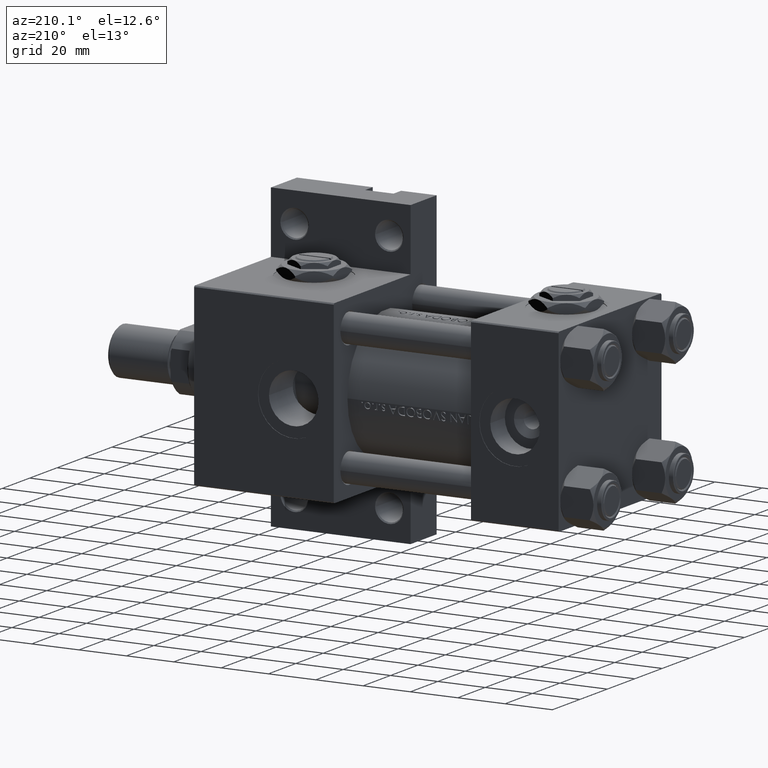
[diagram: clean part render]
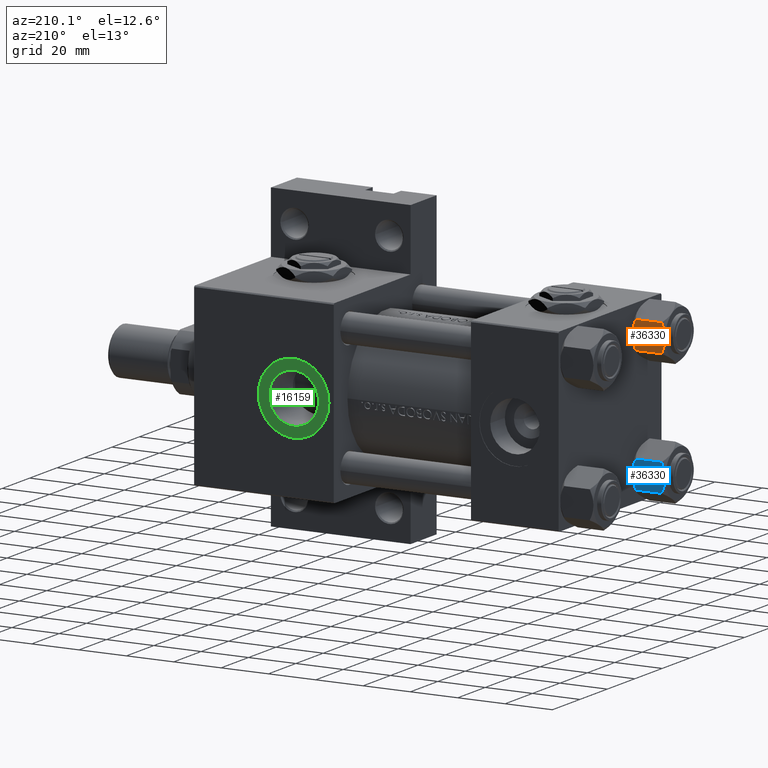
[diagram: same view with three faces highlighted in distinct colors, each labeled with its STEP entity id]
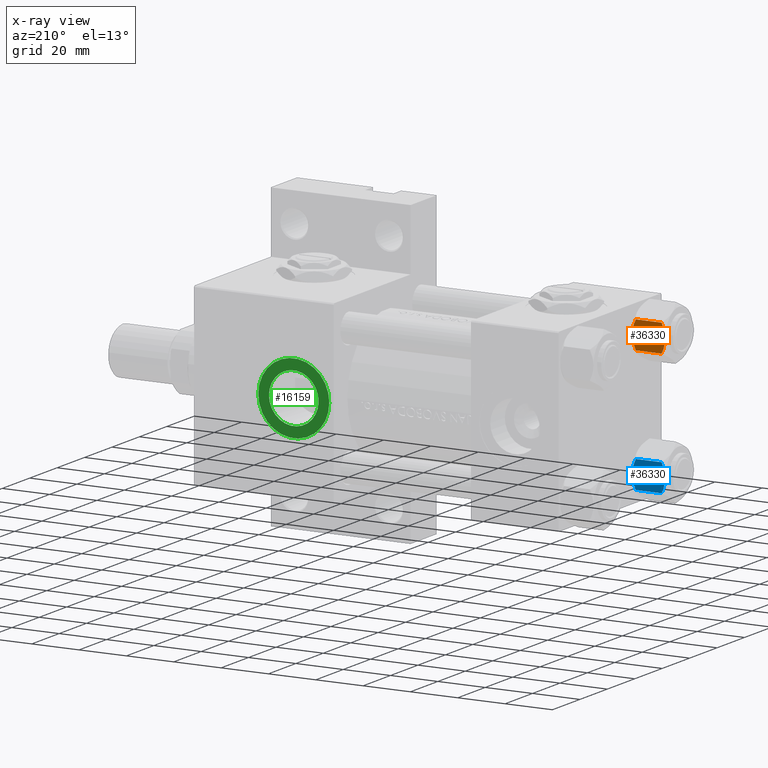
[diagram: x-ray of the same camera — body ghosted, the three highlighted faces saturated]
A machine part, auxiliary view with three faces highlighted in distinct colors.
The next image is the same camera in x-ray (body ghosted, the three faces saturated) — at least one of them is partly hidden behind the body in this view.
Their STEP definitions:

[orange] entity #36330 — the highlighted planar face has unit normal (0, -1, 0).
#371 = VERTEX_POINT ( 'NONE', #44726 ) ;
#1357 = CARTESIAN_POINT ( 'NONE',  ( -5.810000000000000497, -10.06321519197517844, -12.44321519197518633 ) ) ;
#2490 = B_SPLINE_CURVE_WITH_KNOTS ( 'NONE', 3,
 ( #38866, #23390, #4105, #26202, #6900, #22391, #43915, #4357 ),
 .UNSPECIFIED., .F., .F.,
 ( 4, 2, 2, 4 ),
 ( 0.01467889604968879332, 0.01619420351931635110, 0.01770951098894390716, 0.02074012592819902273 ),
 .UNSPECIFIED. ) ;
#2619 = CARTESIAN_POINT ( 'NONE',  ( 3.960942496020604331, -10.06321519197518022, -0.7115728323610380768 ) ) ;
#2931 = B_SPLINE_CURVE_WITH_KNOTS ( 'NONE', 3,
 ( #11230, #14797, #26716, #26466, #41931, #30013, #2619, #7419, #10488 ),
 .UNSPECIFIED., .F., .F.,
 ( 4, 2, 1, 2, 4 ),
 ( 0.02074012592819902273, 0.02149589804477578664, 0.02225167016135255402, 0.02376321439450608530, 0.02678630286081314441 ),
 .UNSPECIFIED. ) ;
#3205 = ORIENTED_EDGE ( 'NONE', *, *, #40835, .F. ) ;
#4105 = CARTESIAN_POINT ( 'NONE',  ( -4.900668367960793859, -10.06321519197517667, -1.121556683709771463 ) ) ;
#4357 = CARTESIAN_POINT ( 'NONE',  ( 1.502314598737159623E-15, -10.06321519197518199, 0.000000000000000000 ) ) ;
#5167 = CARTESIAN_POINT ( 'NONE',  ( -1.772424303831127590, -10.06321519197517667, -13.86611290782776784 ) ) ;
#5384 = CARTESIAN_POINT ( 'NONE',  ( -5.810000000000000497, -10.06321519197517844, -14.00000000000000000 ) ) ;
#6900 = CARTESIAN_POINT ( 'NONE',  ( -3.474497094393254937, -10.06321519197517844, -0.5726960901042742469 ) ) ;
#7100 = VECTOR ( 'NONE', #13245, 1000.000000000000000 ) ;
#7419 = CARTESIAN_POINT ( 'NONE',  ( 4.908816193182381937, -10.06321519197517844, -1.106192904616003059 ) ) ;
#8901 = VERTEX_POINT ( 'NONE', #16486 ) ;
#10488 = CARTESIAN_POINT ( 'NONE',  ( 5.810000000000000497, -10.06321519197517667, -1.556784808024811895 ) ) ;
#11230 = CARTESIAN_POINT ( 'NONE',  ( 1.502314598737159623E-15, -10.06321519197518199, 0.000000000000000000 ) ) ;
#12143 = AXIS2_PLACEMENT_3D ( 'NONE', #14326, #26261, #34628 ) ;
#12414 = CARTESIAN_POINT ( 'NONE',  ( 5.810000000000000497, -10.06321519197517667, -12.44321519197518811 ) ) ;
#13245 = DIRECTION ( 'NONE',  ( -0.000000000000000000, -0.000000000000000000, 1.000000000000000000 ) ) ;
#14139 = CARTESIAN_POINT ( 'NONE',  ( 3.474497094393254493, -10.06321519197517667, -13.42730390989572520 ) ) ;
#14326 = CARTESIAN_POINT ( 'NONE',  ( 5.810000000000000497, -10.06321519197517667, -14.00000000000000000 ) ) ;
#14391 = CARTESIAN_POINT ( 'NONE',  ( 3.958929922320421291, -10.06321519197517489, -13.25786014976460514 ) ) ;
#14396 = VERTEX_POINT ( 'NONE', #35495 ) ;
#14797 = CARTESIAN_POINT ( 'NONE',  ( 0.2543996698847484361, -10.06321519197517667, 4.398642095091581661E-15 ) ) ;
#16071 = ORIENTED_EDGE ( 'NONE', *, *, #17407, .F. ) ;
#16217 = EDGE_CURVE ( 'NONE', #24958, #371, #38602, .T. ) ;
#16486 = CARTESIAN_POINT ( 'NONE',  ( -5.810000000000000497, -10.06321519197517844, -12.44321519197518633 ) ) ;
#17407 = EDGE_CURVE ( 'NONE', #14396, #8901, #18239, .T. ) ;
#18239 = B_SPLINE_CURVE_WITH_KNOTS ( 'NONE', 3,
 ( #24208, #28756, #25201, #32561, #5167, #32811, #32069, #40661, #1357 ),
 .UNSPECIFIED., .F., .F.,
 ( 4, 2, 1, 2, 4 ),
 ( 0.02074012592819901926, 0.02149589804477578664, 0.02225167016135255055, 0.02376321439450608183, 0.02678630286081314094 ),
 .UNSPECIFIED. ) ;
#18454 = CARTESIAN_POINT ( 'NONE',  ( 5.810000000000000497, -10.06321519197517667, -12.44321519197518811 ) ) ;
#18639 = PLANE ( 'NONE',  #12143 ) ;
#18814 = DIRECTION ( 'NONE',  ( -0.000000000000000000, -0.000000000000000000, 1.000000000000000000 ) ) ;
#19033 = ORIENTED_EDGE ( 'NONE', *, *, #41371, .F. ) ;
#20376 = VERTEX_POINT ( 'NONE', #40839 ) ;
#21129 = VERTEX_POINT ( 'NONE', #49392 ) ;
#21267 = ORIENTED_EDGE ( 'NONE', *, *, #42925, .F. ) ;
#22391 = CARTESIAN_POINT ( 'NONE',  ( -2.013954290287968352, -10.06321519197517844, -0.1570111679759963463 ) ) ;
#23390 = CARTESIAN_POINT ( 'NONE',  ( -5.359707691559672860, -10.06321519197517844, -1.331638653804651851 ) ) ;
#24208 = CARTESIAN_POINT ( 'NONE',  ( 1.502314598737159623E-15, -10.06321519197518199, -14.00000000000000000 ) ) ;
#24958 = VERTEX_POINT ( 'NONE', #12414 ) ;
#25201 = CARTESIAN_POINT ( 'NONE',  ( -0.5112014849988885112, -10.06321519197517844, -13.99019602057109246 ) ) ;
#26070 = CARTESIAN_POINT ( 'NONE',  ( 4.900668367960795635, -10.06321519197517667, -12.87844331629023564 ) ) ;
#26202 = CARTESIAN_POINT ( 'NONE',  ( -3.958929922320420403, -10.06321519197517844, -0.7421398502353970805 ) ) ;
#26261 = DIRECTION ( 'NONE',  ( -1.492877345935290102E-16, 1.000000000000000000, 0.000000000000000000 ) ) ;
#26466 = CARTESIAN_POINT ( 'NONE',  ( 1.018274738099083976, -10.06321519197517667, -0.04822742080070548110 ) ) ;
#26510 = FACE_OUTER_BOUND ( 'NONE', #31412, .T. ) ;
#26716 = CARTESIAN_POINT ( 'NONE',  ( 0.5112014849988879561, -10.06321519197517667, -0.009803979428909967431 ) ) ;
#28094 = EDGE_CURVE ( 'NONE', #8901, #21129, #40884, .T. ) ;
#28756 = CARTESIAN_POINT ( 'NONE',  ( -0.2543996698847484916, -10.06321519197517844, -14.00000000000000888 ) ) ;
#30013 = CARTESIAN_POINT ( 'NONE',  ( 2.508586450168040827, -10.06321519197517667, -0.2975752632032254708 ) ) ;
#31412 = EDGE_LOOP ( 'NONE', ( #19033, #43023, #21267, #3205, #39219, #16071 ) ) ;
#32069 = CARTESIAN_POINT ( 'NONE',  ( -3.960942496020602555, -10.06321519197517844, -13.28842716763896270 ) ) ;
#32561 = CARTESIAN_POINT ( 'NONE',  ( -1.018274738099084864, -10.06321519197518022, -13.95177257919929303 ) ) ;
#32811 = CARTESIAN_POINT ( 'NONE',  ( -2.508586450168039494, -10.06321519197517844, -13.70242473679677353 ) ) ;
#34628 = DIRECTION ( 'NONE',  ( -1.000000000000000000, -1.492877345935290102E-16, 0.000000000000000000 ) ) ;
#34804 = CARTESIAN_POINT ( 'NONE',  ( 5.810000000000000497, -10.06321519197517667, -14.00000000000000000 ) ) ;
#35495 = CARTESIAN_POINT ( 'NONE',  ( 1.502314598737159623E-15, -10.06321519197518199, -14.00000000000000000 ) ) ;
#36330 = ADVANCED_FACE ( 'NONE', ( #26510 ), #18639, .F. ) ;
#38602 = LINE ( 'NONE', #34804, #46066 ) ;
#38866 = CARTESIAN_POINT ( 'NONE',  ( -5.810000000000000497, -10.06321519197517844, -1.556784808024813893 ) ) ;
#39219 = ORIENTED_EDGE ( 'NONE', *, *, #28094, .F. ) ;
#40586 = B_SPLINE_CURVE_WITH_KNOTS ( 'NONE', 3,
 ( #18454, #41788, #26070, #14391, #14139, #49658, #41284, #46090 ),
 .UNSPECIFIED., .F., .F.,
 ( 4, 2, 2, 4 ),
 ( 0.01467889604968879158, 0.01619420351931634763, 0.01770951098894390369, 0.02074012592819901926 ),
 .UNSPECIFIED. ) ;
#40661 = CARTESIAN_POINT ( 'NONE',  ( -4.908816193182382825, -10.06321519197518022, -12.89380709538399650 ) ) ;
#40835 = EDGE_CURVE ( 'NONE', #21129, #20376, #2490, .T. ) ;
#40839 = CARTESIAN_POINT ( 'NONE',  ( 1.502314598737159623E-15, -10.06321519197518199, 0.000000000000000000 ) ) ;
#40884 = LINE ( 'NONE', #5384, #7100 ) ;
#41284 = CARTESIAN_POINT ( 'NONE',  ( 1.020132157807625228, -10.06321519197517667, -14.00000000000000533 ) ) ;
#41371 = EDGE_CURVE ( 'NONE', #24958, #14396, #40586, .T. ) ;
#41788 = CARTESIAN_POINT ( 'NONE',  ( 5.359707691559671972, -10.06321519197517667, -12.66836134619534882 ) ) ;
#41931 = CARTESIAN_POINT ( 'NONE',  ( 1.772424303831126258, -10.06321519197517311, -0.1338870921722345175 ) ) ;
#42925 = EDGE_CURVE ( 'NONE', #20376, #371, #2931, .T. ) ;
#43023 = ORIENTED_EDGE ( 'NONE', *, *, #16217, .T. ) ;
#43915 = CARTESIAN_POINT ( 'NONE',  ( -1.020132157807625450, -10.06321519197517489, 4.052205619664572033E-15 ) ) ;
#44726 = CARTESIAN_POINT ( 'NONE',  ( 5.810000000000000497, -10.06321519197517667, -1.556784808024811895 ) ) ;
#46066 = VECTOR ( 'NONE', #18814, 1000.000000000000000 ) ;
#46090 = CARTESIAN_POINT ( 'NONE',  ( 1.502314598737159623E-15, -10.06321519197518199, -14.00000000000000000 ) ) ;
#49392 = CARTESIAN_POINT ( 'NONE',  ( -5.810000000000000497, -10.06321519197517844, -1.556784808024813893 ) ) ;
#49658 = CARTESIAN_POINT ( 'NONE',  ( 2.013954290287968796, -10.06321519197517667, -13.84298883202400532 ) ) ;

[blue] entity #36330 — the highlighted planar face has unit normal (0, -1, 0).
#371 = VERTEX_POINT ( 'NONE', #44726 ) ;
#1357 = CARTESIAN_POINT ( 'NONE',  ( -5.810000000000000497, -10.06321519197517844, -12.44321519197518633 ) ) ;
#2490 = B_SPLINE_CURVE_WITH_KNOTS ( 'NONE', 3,
 ( #38866, #23390, #4105, #26202, #6900, #22391, #43915, #4357 ),
 .UNSPECIFIED., .F., .F.,
 ( 4, 2, 2, 4 ),
 ( 0.01467889604968879332, 0.01619420351931635110, 0.01770951098894390716, 0.02074012592819902273 ),
 .UNSPECIFIED. ) ;
#2619 = CARTESIAN_POINT ( 'NONE',  ( 3.960942496020604331, -10.06321519197518022, -0.7115728323610380768 ) ) ;
#2931 = B_SPLINE_CURVE_WITH_KNOTS ( 'NONE', 3,
 ( #11230, #14797, #26716, #26466, #41931, #30013, #2619, #7419, #10488 ),
 .UNSPECIFIED., .F., .F.,
 ( 4, 2, 1, 2, 4 ),
 ( 0.02074012592819902273, 0.02149589804477578664, 0.02225167016135255402, 0.02376321439450608530, 0.02678630286081314441 ),
 .UNSPECIFIED. ) ;
#3205 = ORIENTED_EDGE ( 'NONE', *, *, #40835, .F. ) ;
#4105 = CARTESIAN_POINT ( 'NONE',  ( -4.900668367960793859, -10.06321519197517667, -1.121556683709771463 ) ) ;
#4357 = CARTESIAN_POINT ( 'NONE',  ( 1.502314598737159623E-15, -10.06321519197518199, 0.000000000000000000 ) ) ;
#5167 = CARTESIAN_POINT ( 'NONE',  ( -1.772424303831127590, -10.06321519197517667, -13.86611290782776784 ) ) ;
#5384 = CARTESIAN_POINT ( 'NONE',  ( -5.810000000000000497, -10.06321519197517844, -14.00000000000000000 ) ) ;
#6900 = CARTESIAN_POINT ( 'NONE',  ( -3.474497094393254937, -10.06321519197517844, -0.5726960901042742469 ) ) ;
#7100 = VECTOR ( 'NONE', #13245, 1000.000000000000000 ) ;
#7419 = CARTESIAN_POINT ( 'NONE',  ( 4.908816193182381937, -10.06321519197517844, -1.106192904616003059 ) ) ;
#8901 = VERTEX_POINT ( 'NONE', #16486 ) ;
#10488 = CARTESIAN_POINT ( 'NONE',  ( 5.810000000000000497, -10.06321519197517667, -1.556784808024811895 ) ) ;
#11230 = CARTESIAN_POINT ( 'NONE',  ( 1.502314598737159623E-15, -10.06321519197518199, 0.000000000000000000 ) ) ;
#12143 = AXIS2_PLACEMENT_3D ( 'NONE', #14326, #26261, #34628 ) ;
#12414 = CARTESIAN_POINT ( 'NONE',  ( 5.810000000000000497, -10.06321519197517667, -12.44321519197518811 ) ) ;
#13245 = DIRECTION ( 'NONE',  ( -0.000000000000000000, -0.000000000000000000, 1.000000000000000000 ) ) ;
#14139 = CARTESIAN_POINT ( 'NONE',  ( 3.474497094393254493, -10.06321519197517667, -13.42730390989572520 ) ) ;
#14326 = CARTESIAN_POINT ( 'NONE',  ( 5.810000000000000497, -10.06321519197517667, -14.00000000000000000 ) ) ;
#14391 = CARTESIAN_POINT ( 'NONE',  ( 3.958929922320421291, -10.06321519197517489, -13.25786014976460514 ) ) ;
#14396 = VERTEX_POINT ( 'NONE', #35495 ) ;
#14797 = CARTESIAN_POINT ( 'NONE',  ( 0.2543996698847484361, -10.06321519197517667, 4.398642095091581661E-15 ) ) ;
#16071 = ORIENTED_EDGE ( 'NONE', *, *, #17407, .F. ) ;
#16217 = EDGE_CURVE ( 'NONE', #24958, #371, #38602, .T. ) ;
#16486 = CARTESIAN_POINT ( 'NONE',  ( -5.810000000000000497, -10.06321519197517844, -12.44321519197518633 ) ) ;
#17407 = EDGE_CURVE ( 'NONE', #14396, #8901, #18239, .T. ) ;
#18239 = B_SPLINE_CURVE_WITH_KNOTS ( 'NONE', 3,
 ( #24208, #28756, #25201, #32561, #5167, #32811, #32069, #40661, #1357 ),
 .UNSPECIFIED., .F., .F.,
 ( 4, 2, 1, 2, 4 ),
 ( 0.02074012592819901926, 0.02149589804477578664, 0.02225167016135255055, 0.02376321439450608183, 0.02678630286081314094 ),
 .UNSPECIFIED. ) ;
#18454 = CARTESIAN_POINT ( 'NONE',  ( 5.810000000000000497, -10.06321519197517667, -12.44321519197518811 ) ) ;
#18639 = PLANE ( 'NONE',  #12143 ) ;
#18814 = DIRECTION ( 'NONE',  ( -0.000000000000000000, -0.000000000000000000, 1.000000000000000000 ) ) ;
#19033 = ORIENTED_EDGE ( 'NONE', *, *, #41371, .F. ) ;
#20376 = VERTEX_POINT ( 'NONE', #40839 ) ;
#21129 = VERTEX_POINT ( 'NONE', #49392 ) ;
#21267 = ORIENTED_EDGE ( 'NONE', *, *, #42925, .F. ) ;
#22391 = CARTESIAN_POINT ( 'NONE',  ( -2.013954290287968352, -10.06321519197517844, -0.1570111679759963463 ) ) ;
#23390 = CARTESIAN_POINT ( 'NONE',  ( -5.359707691559672860, -10.06321519197517844, -1.331638653804651851 ) ) ;
#24208 = CARTESIAN_POINT ( 'NONE',  ( 1.502314598737159623E-15, -10.06321519197518199, -14.00000000000000000 ) ) ;
#24958 = VERTEX_POINT ( 'NONE', #12414 ) ;
#25201 = CARTESIAN_POINT ( 'NONE',  ( -0.5112014849988885112, -10.06321519197517844, -13.99019602057109246 ) ) ;
#26070 = CARTESIAN_POINT ( 'NONE',  ( 4.900668367960795635, -10.06321519197517667, -12.87844331629023564 ) ) ;
#26202 = CARTESIAN_POINT ( 'NONE',  ( -3.958929922320420403, -10.06321519197517844, -0.7421398502353970805 ) ) ;
#26261 = DIRECTION ( 'NONE',  ( -1.492877345935290102E-16, 1.000000000000000000, 0.000000000000000000 ) ) ;
#26466 = CARTESIAN_POINT ( 'NONE',  ( 1.018274738099083976, -10.06321519197517667, -0.04822742080070548110 ) ) ;
#26510 = FACE_OUTER_BOUND ( 'NONE', #31412, .T. ) ;
#26716 = CARTESIAN_POINT ( 'NONE',  ( 0.5112014849988879561, -10.06321519197517667, -0.009803979428909967431 ) ) ;
#28094 = EDGE_CURVE ( 'NONE', #8901, #21129, #40884, .T. ) ;
#28756 = CARTESIAN_POINT ( 'NONE',  ( -0.2543996698847484916, -10.06321519197517844, -14.00000000000000888 ) ) ;
#30013 = CARTESIAN_POINT ( 'NONE',  ( 2.508586450168040827, -10.06321519197517667, -0.2975752632032254708 ) ) ;
#31412 = EDGE_LOOP ( 'NONE', ( #19033, #43023, #21267, #3205, #39219, #16071 ) ) ;
#32069 = CARTESIAN_POINT ( 'NONE',  ( -3.960942496020602555, -10.06321519197517844, -13.28842716763896270 ) ) ;
#32561 = CARTESIAN_POINT ( 'NONE',  ( -1.018274738099084864, -10.06321519197518022, -13.95177257919929303 ) ) ;
#32811 = CARTESIAN_POINT ( 'NONE',  ( -2.508586450168039494, -10.06321519197517844, -13.70242473679677353 ) ) ;
#34628 = DIRECTION ( 'NONE',  ( -1.000000000000000000, -1.492877345935290102E-16, 0.000000000000000000 ) ) ;
#34804 = CARTESIAN_POINT ( 'NONE',  ( 5.810000000000000497, -10.06321519197517667, -14.00000000000000000 ) ) ;
#35495 = CARTESIAN_POINT ( 'NONE',  ( 1.502314598737159623E-15, -10.06321519197518199, -14.00000000000000000 ) ) ;
#36330 = ADVANCED_FACE ( 'NONE', ( #26510 ), #18639, .F. ) ;
#38602 = LINE ( 'NONE', #34804, #46066 ) ;
#38866 = CARTESIAN_POINT ( 'NONE',  ( -5.810000000000000497, -10.06321519197517844, -1.556784808024813893 ) ) ;
#39219 = ORIENTED_EDGE ( 'NONE', *, *, #28094, .F. ) ;
#40586 = B_SPLINE_CURVE_WITH_KNOTS ( 'NONE', 3,
 ( #18454, #41788, #26070, #14391, #14139, #49658, #41284, #46090 ),
 .UNSPECIFIED., .F., .F.,
 ( 4, 2, 2, 4 ),
 ( 0.01467889604968879158, 0.01619420351931634763, 0.01770951098894390369, 0.02074012592819901926 ),
 .UNSPECIFIED. ) ;
#40661 = CARTESIAN_POINT ( 'NONE',  ( -4.908816193182382825, -10.06321519197518022, -12.89380709538399650 ) ) ;
#40835 = EDGE_CURVE ( 'NONE', #21129, #20376, #2490, .T. ) ;
#40839 = CARTESIAN_POINT ( 'NONE',  ( 1.502314598737159623E-15, -10.06321519197518199, 0.000000000000000000 ) ) ;
#40884 = LINE ( 'NONE', #5384, #7100 ) ;
#41284 = CARTESIAN_POINT ( 'NONE',  ( 1.020132157807625228, -10.06321519197517667, -14.00000000000000533 ) ) ;
#41371 = EDGE_CURVE ( 'NONE', #24958, #14396, #40586, .T. ) ;
#41788 = CARTESIAN_POINT ( 'NONE',  ( 5.359707691559671972, -10.06321519197517667, -12.66836134619534882 ) ) ;
#41931 = CARTESIAN_POINT ( 'NONE',  ( 1.772424303831126258, -10.06321519197517311, -0.1338870921722345175 ) ) ;
#42925 = EDGE_CURVE ( 'NONE', #20376, #371, #2931, .T. ) ;
#43023 = ORIENTED_EDGE ( 'NONE', *, *, #16217, .T. ) ;
#43915 = CARTESIAN_POINT ( 'NONE',  ( -1.020132157807625450, -10.06321519197517489, 4.052205619664572033E-15 ) ) ;
#44726 = CARTESIAN_POINT ( 'NONE',  ( 5.810000000000000497, -10.06321519197517667, -1.556784808024811895 ) ) ;
#46066 = VECTOR ( 'NONE', #18814, 1000.000000000000000 ) ;
#46090 = CARTESIAN_POINT ( 'NONE',  ( 1.502314598737159623E-15, -10.06321519197518199, -14.00000000000000000 ) ) ;
#49392 = CARTESIAN_POINT ( 'NONE',  ( -5.810000000000000497, -10.06321519197517844, -1.556784808024813893 ) ) ;
#49658 = CARTESIAN_POINT ( 'NONE',  ( 2.013954290287968796, -10.06321519197517667, -13.84298883202400532 ) ) ;

[green] entity #16159 — the highlighted planar face has unit normal (0, 1, 0).
#1158 = FACE_BOUND ( 'NONE', #43293, .T. ) ;
#1404 = CARTESIAN_POINT ( 'NONE',  ( 112.0000000000000000, -6.938893903907226011E-15, 37.29999999999998295 ) ) ;
#6615 = DIRECTION ( 'NONE',  ( 1.000000000000000000, 0.000000000000000000, 0.000000000000000000 ) ) ;
#7849 = EDGE_LOOP ( 'NONE', ( #43789, #30007 ) ) ;
#9726 = DIRECTION ( 'NONE',  ( 0.000000000000000000, 0.000000000000000000, 1.000000000000000000 ) ) ;
#11121 = CIRCLE ( 'NONE', #28954, 10.48000000000000398 ) ;
#11238 = AXIS2_PLACEMENT_3D ( 'NONE', #1404, #16885, #47824 ) ;
#12168 = DIRECTION ( 'NONE',  ( 1.000000000000000000, 0.000000000000000000, 0.000000000000000000 ) ) ;
#13758 = AXIS2_PLACEMENT_3D ( 'NONE', #31460, #46925, #12168 ) ;
#14109 = CIRCLE ( 'NONE', #38462, 10.48000000000000398 ) ;
#16159 = ADVANCED_FACE ( 'NONE', ( #1158, #16639 ), #36172, .T. ) ;
#16639 = FACE_OUTER_BOUND ( 'NONE', #7849, .T. ) ;
#16885 = DIRECTION ( 'NONE',  ( 0.000000000000000000, 0.000000000000000000, 1.000000000000000000 ) ) ;
#18402 = CARTESIAN_POINT ( 'NONE',  ( 127.0000000000000000, -6.938893903907226011E-15, 37.29999999999998295 ) ) ;
#20028 = ORIENTED_EDGE ( 'NONE', *, *, #47212, .F. ) ;
#22454 = CARTESIAN_POINT ( 'NONE',  ( 96.99999999999998579, -5.101923705186194844E-15, 37.29999999999998295 ) ) ;
#23090 = VERTEX_POINT ( 'NONE', #45090 ) ;
#24587 = CARTESIAN_POINT ( 'NONE',  ( 122.4800000000000040, -6.938893903907226011E-15, 37.29999999999998295 ) ) ;
#25496 = VERTEX_POINT ( 'NONE', #18402 ) ;
#26249 = EDGE_CURVE ( 'NONE', #23090, #36944, #11121, .T. ) ;
#27283 = EDGE_CURVE ( 'NONE', #25496, #36412, #33004, .T. ) ;
#28153 = AXIS2_PLACEMENT_3D ( 'NONE', #45925, #49498, #6615 ) ;
#28954 = AXIS2_PLACEMENT_3D ( 'NONE', #33949, #50170, #30132 ) ;
#29016 = CARTESIAN_POINT ( 'NONE',  ( 112.0000000000000000, -6.938893903907226011E-15, 37.29999999999998295 ) ) ;
#30007 = ORIENTED_EDGE ( 'NONE', *, *, #36891, .T. ) ;
#30132 = DIRECTION ( 'NONE',  ( 1.000000000000000000, 0.000000000000000000, 0.000000000000000000 ) ) ;
#31460 = CARTESIAN_POINT ( 'NONE',  ( 112.0000000000000000, -6.938893903907226011E-15, 37.29999999999998295 ) ) ;
#33004 = CIRCLE ( 'NONE', #28153, 15.00000000000000000 ) ;
#33949 = CARTESIAN_POINT ( 'NONE',  ( 112.0000000000000000, -6.938893903907226011E-15, 37.29999999999998295 ) ) ;
#35315 = ORIENTED_EDGE ( 'NONE', *, *, #26249, .F. ) ;
#35652 = CIRCLE ( 'NONE', #13758, 15.00000000000000000 ) ;
#36172 = PLANE ( 'NONE',  #11238 ) ;
#36412 = VERTEX_POINT ( 'NONE', #22454 ) ;
#36891 = EDGE_CURVE ( 'NONE', #36412, #25496, #35652, .T. ) ;
#36944 = VERTEX_POINT ( 'NONE', #24587 ) ;
#37620 = DIRECTION ( 'NONE',  ( 1.000000000000000000, 0.000000000000000000, 0.000000000000000000 ) ) ;
#38462 = AXIS2_PLACEMENT_3D ( 'NONE', #29016, #9726, #37620 ) ;
#43293 = EDGE_LOOP ( 'NONE', ( #20028, #35315 ) ) ;
#43789 = ORIENTED_EDGE ( 'NONE', *, *, #27283, .T. ) ;
#45090 = CARTESIAN_POINT ( 'NONE',  ( 101.5199999999999960, -5.655464058400800522E-15, 37.29999999999998295 ) ) ;
#45925 = CARTESIAN_POINT ( 'NONE',  ( 112.0000000000000000, -6.938893903907226011E-15, 37.29999999999998295 ) ) ;
#46925 = DIRECTION ( 'NONE',  ( 0.000000000000000000, 0.000000000000000000, 1.000000000000000000 ) ) ;
#47212 = EDGE_CURVE ( 'NONE', #36944, #23090, #14109, .T. ) ;
#47824 = DIRECTION ( 'NONE',  ( 1.000000000000000000, 0.000000000000000000, -0.000000000000000000 ) ) ;
#49498 = DIRECTION ( 'NONE',  ( 0.000000000000000000, 0.000000000000000000, 1.000000000000000000 ) ) ;
#50170 = DIRECTION ( 'NONE',  ( 0.000000000000000000, 0.000000000000000000, 1.000000000000000000 ) ) ;